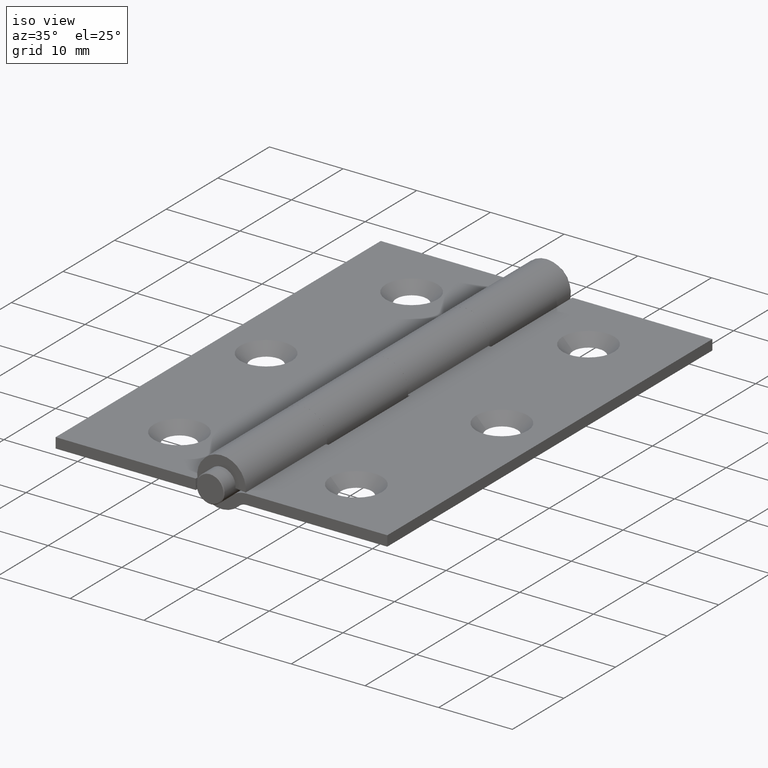
[diagram: clean part render]
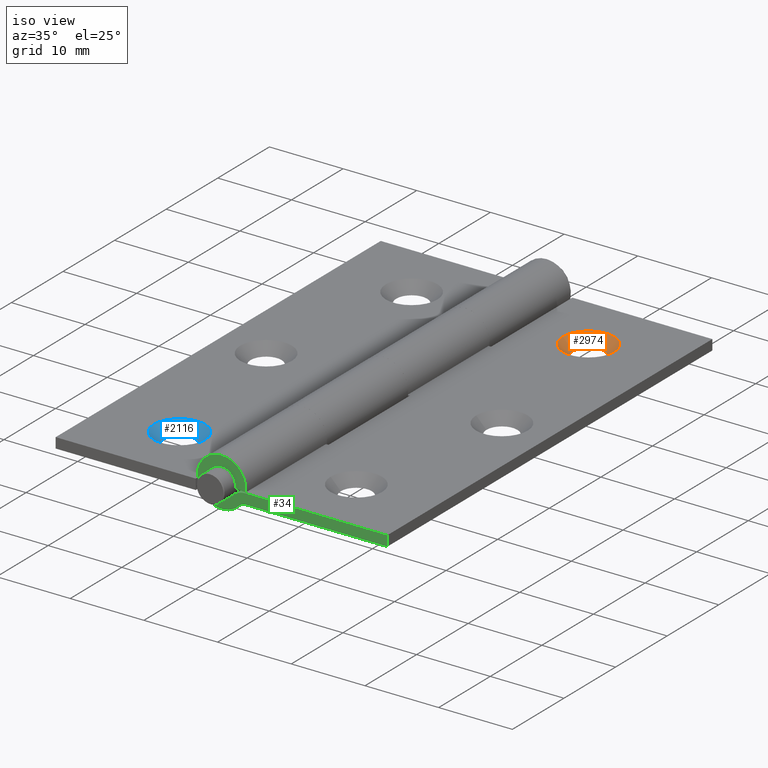
[diagram: same view with three faces highlighted in distinct colors, each labeled with its STEP entity id]
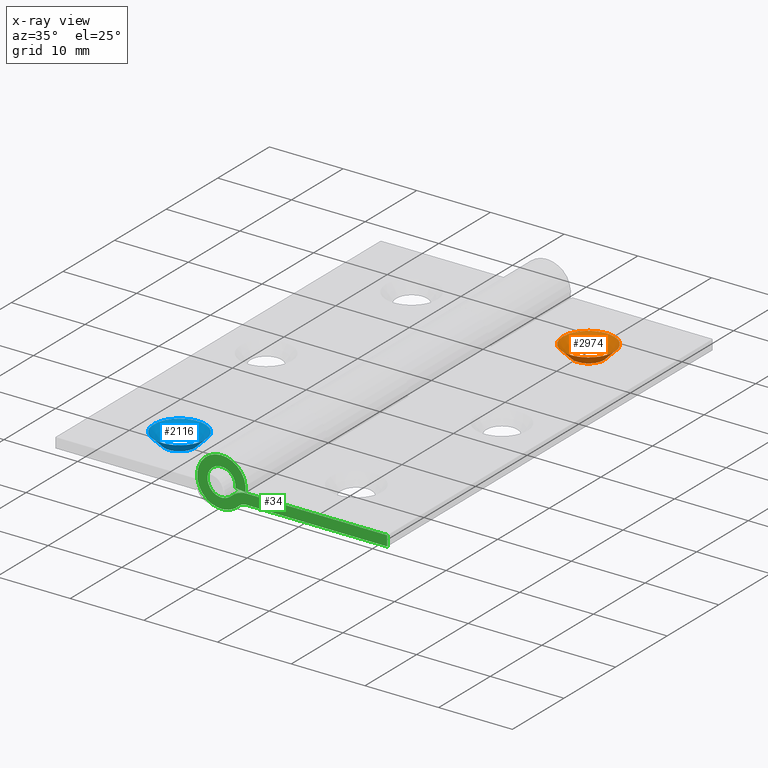
[diagram: x-ray of the same camera — body ghosted, the three highlighted faces saturated]
A machine part, iso view with three faces highlighted in distinct colors.
The next image is the same camera in x-ray (body ghosted, the three faces saturated) — at least one of them is partly hidden behind the body in this view.
Their STEP definitions:

[orange] entity #2974 — the highlighted conical surface has half-angle 45 deg.
#587 = CARTESIAN_POINT ( 'NONE',  ( -9.899999999999996803, -22.50000000000000000, -1.899999999999999689 ) ) ;
#661 = CARTESIAN_POINT ( 'NONE',  ( -15.49999999999998757, -22.50000000000000000, -0.5000000000000001110 ) ) ;
#1502 = FACE_BOUND ( 'NONE', #2259, .T. ) ;
#1519 = AXIS2_PLACEMENT_3D ( 'NONE', #3634, #5445, #8141 ) ;
#1692 = VERTEX_POINT ( 'NONE', #661 ) ;
#1995 = CARTESIAN_POINT ( 'NONE',  ( -11.99999999999999822, -22.50000000000000000, -1.899999999999999689 ) ) ;
#2259 = EDGE_LOOP ( 'NONE', ( #6243 ) ) ;
#2742 = DIRECTION ( 'NONE',  ( 0.000000000000000000, 0.000000000000000000, 1.000000000000000000 ) ) ;
#2859 = CONICAL_SURFACE ( 'NONE', #6105, 2.100000000000000977, 0.7853981633974482790 ) ;
#2974 = ADVANCED_FACE ( 'NONE', ( #3822, #1502 ), #2859, .F. ) ;
#3055 = EDGE_LOOP ( 'NONE', ( #10141 ) ) ;
#3634 = CARTESIAN_POINT ( 'NONE',  ( -11.99999999999999822, -22.50000000000000000, -0.5000000000000002220 ) ) ;
#3809 = DIRECTION ( 'NONE',  ( 1.000000000000000000, 0.000000000000000000, 0.000000000000000000 ) ) ;
#3822 = FACE_OUTER_BOUND ( 'NONE', #3055, .T. ) ;
#4362 = EDGE_CURVE ( 'NONE', #9398, #9398, #5747, .T. ) ;
#5001 = EDGE_CURVE ( 'NONE', #1692, #1692, #8202, .T. ) ;
#5445 = DIRECTION ( 'NONE',  ( -2.264254790790743879E-17, 0.000000000000000000, -1.000000000000000000 ) ) ;
#5747 = CIRCLE ( 'NONE', #7025, 2.100000000000000977 ) ;
#6105 = AXIS2_PLACEMENT_3D ( 'NONE', #6179, #2742, #3809 ) ;
#6179 = CARTESIAN_POINT ( 'NONE',  ( -11.99999999999999822, -22.50000000000000000, -1.899999999999988809 ) ) ;
#6243 = ORIENTED_EDGE ( 'NONE', *, *, #4362, .F. ) ;
#7025 = AXIS2_PLACEMENT_3D ( 'NONE', #1995, #8973, #8902 ) ;
#8141 = DIRECTION ( 'NONE',  ( -1.000000000000000000, 0.000000000000000000, 3.097720492815736287E-17 ) ) ;
#8202 = CIRCLE ( 'NONE', #1519, 3.499999999999989342 ) ;
#8902 = DIRECTION ( 'NONE',  ( 1.000000000000000000, 0.000000000000000000, 0.000000000000000000 ) ) ;
#8973 = DIRECTION ( 'NONE',  ( 0.000000000000000000, 0.000000000000000000, 1.000000000000000000 ) ) ;
#9398 = VERTEX_POINT ( 'NONE', #587 ) ;
#10141 = ORIENTED_EDGE ( 'NONE', *, *, #5001, .F. ) ;

[blue] entity #2116 — the highlighted conical surface has half-angle 45 deg.
#89 = CARTESIAN_POINT ( 'NONE',  ( -11.99999999999999822, -22.50000000000000000, -1.899999999999995470 ) ) ;
#127 = CONICAL_SURFACE ( 'NONE', #9906, 2.100000000000000977, 0.7853981633974506105 ) ;
#528 = FACE_OUTER_BOUND ( 'NONE', #11336, .T. ) ;
#851 = EDGE_LOOP ( 'NONE', ( #11015 ) ) ;
#1316 = DIRECTION ( 'NONE',  ( -1.000000000000000000, 0.000000000000000000, 0.000000000000000000 ) ) ;
#1847 = DIRECTION ( 'NONE',  ( 1.000000000000000000, 0.000000000000000000, 0.000000000000000000 ) ) ;
#2116 = ADVANCED_FACE ( 'NONE', ( #528, #8096 ), #127, .F. ) ;
#2428 = AXIS2_PLACEMENT_3D ( 'NONE', #3661, #2748, #9934 ) ;
#2710 = AXIS2_PLACEMENT_3D ( 'NONE', #8313, #3071, #1316 ) ;
#2748 = DIRECTION ( 'NONE',  ( 0.000000000000000000, 0.000000000000000000, 1.000000000000000000 ) ) ;
#3071 = DIRECTION ( 'NONE',  ( 0.000000000000000000, 0.000000000000000000, -1.000000000000000000 ) ) ;
#3613 = ORIENTED_EDGE ( 'NONE', *, *, #7674, .F. ) ;
#3661 = CARTESIAN_POINT ( 'NONE',  ( -11.99999999999999822, -22.50000000000000000, -1.899999999999999689 ) ) ;
#5257 = VERTEX_POINT ( 'NONE', #7677 ) ;
#5929 = CARTESIAN_POINT ( 'NONE',  ( -9.899999999999996803, -22.50000000000000000, -1.899999999999999689 ) ) ;
#6241 = DIRECTION ( 'NONE',  ( 0.000000000000000000, 0.000000000000000000, 1.000000000000000000 ) ) ;
#7205 = VERTEX_POINT ( 'NONE', #5929 ) ;
#7674 = EDGE_CURVE ( 'NONE', #5257, #5257, #10095, .T. ) ;
#7677 = CARTESIAN_POINT ( 'NONE',  ( -15.50000000000000178, -22.50000000000000000, -0.5000000000000000000 ) ) ;
#8096 = FACE_BOUND ( 'NONE', #851, .T. ) ;
#8313 = CARTESIAN_POINT ( 'NONE',  ( -11.99999999999999822, -22.50000000000000000, -0.5000000000000000000 ) ) ;
#9906 = AXIS2_PLACEMENT_3D ( 'NONE', #89, #6241, #1847 ) ;
#9934 = DIRECTION ( 'NONE',  ( 1.000000000000000000, 0.000000000000000000, 0.000000000000000000 ) ) ;
#9984 = EDGE_CURVE ( 'NONE', #7205, #7205, #11310, .T. ) ;
#10095 = CIRCLE ( 'NONE', #2710, 3.500000000000003109 ) ;
#11015 = ORIENTED_EDGE ( 'NONE', *, *, #9984, .F. ) ;
#11310 = CIRCLE ( 'NONE', #2428, 2.100000000000000977 ) ;
#11336 = EDGE_LOOP ( 'NONE', ( #3613 ) ) ;

[green] entity #34 — the highlighted planar face has unit normal (0, 1, 0).
#34 = ADVANCED_FACE ( 'NONE', ( #278 ), #8457, .F. ) ;
#65 = CARTESIAN_POINT ( 'NONE',  ( -1.352897064182760900, 31.50000000000000000, -1.334042553191490788 ) ) ;
#278 = FACE_OUTER_BOUND ( 'NONE', #2449, .T. ) ;
#454 = CIRCLE ( 'NONE', #11124, 2.799999999999999378 ) ;
#775 = LINE ( 'NONE', #3146, #9716 ) ;
#969 = CARTESIAN_POINT ( 'NONE',  ( -3.346640106136300030, 31.50000000000000000, -1.899999999999999689 ) ) ;
#986 = CARTESIAN_POINT ( 'NONE',  ( 0.000000000000000000, 31.50000000000000000, 0.000000000000000000 ) ) ;
#1222 = AXIS2_PLACEMENT_3D ( 'NONE', #1413, #4047, #3899 ) ;
#1237 = EDGE_CURVE ( 'NONE', #6549, #9191, #9078, .T. ) ;
#1321 = AXIS2_PLACEMENT_3D ( 'NONE', #986, #10794, #8970 ) ;
#1413 = CARTESIAN_POINT ( 'NONE',  ( -3.346640106136300030, 31.50000000000000000, -3.299999999999999822 ) ) ;
#2005 = VECTOR ( 'NONE', #9453, 1000.000000000000000 ) ;
#2449 = EDGE_LOOP ( 'NONE', ( #7270, #10249, #10263, #5790, #5446, #3438, #7032, #6287 ) ) ;
#2684 = EDGE_CURVE ( 'NONE', #10766, #6549, #9630, .T. ) ;
#2690 = VERTEX_POINT ( 'NONE', #11014 ) ;
#2779 = AXIS2_PLACEMENT_3D ( 'NONE', #3317, #10374, #3276 ) ;
#3106 = EDGE_CURVE ( 'NONE', #8621, #10766, #3273, .T. ) ;
#3146 = CARTESIAN_POINT ( 'NONE',  ( -22.50000000000000000, 31.50000000000000000, -0.5000000000000000000 ) ) ;
#3164 = CARTESIAN_POINT ( 'NONE',  ( -3.346640106136300030, 31.50000000000000000, -3.299999999999999822 ) ) ;
#3273 = CIRCLE ( 'NONE', #1321, 3.299999999999998046 ) ;
#3276 = DIRECTION ( 'NONE',  ( 0.000000000000000000, 0.000000000000000000, 1.000000000000000000 ) ) ;
#3317 = CARTESIAN_POINT ( 'NONE',  ( 0.000000000000000000, 31.50000000000000000, 0.000000000000000000 ) ) ;
#3438 = ORIENTED_EDGE ( 'NONE', *, *, #3106, .T. ) ;
#3655 = LINE ( 'NONE', #4055, #2005 ) ;
#3892 = VECTOR ( 'NONE', #9421, 1000.000000000000227 ) ;
#3899 = DIRECTION ( 'NONE',  ( 0.000000000000000000, 0.000000000000000000, -1.000000000000000000 ) ) ;
#4047 = DIRECTION ( 'NONE',  ( -0.000000000000000000, -1.000000000000000000, 0.000000000000000000 ) ) ;
#4055 = CARTESIAN_POINT ( 'NONE',  ( -22.50000000000000000, 31.50000000000000000, -0.5000000000000000000 ) ) ;
#4061 = CARTESIAN_POINT ( 'NONE',  ( -22.50000000000000000, 31.50000000000000000, -1.899999999999999689 ) ) ;
#5152 = CARTESIAN_POINT ( 'NONE',  ( -3.346640106136300030, 31.50000000000000000, -3.299999999999999822 ) ) ;
#5169 = EDGE_CURVE ( 'NONE', #2690, #8021, #3655, .T. ) ;
#5285 = EDGE_CURVE ( 'NONE', #9191, #2690, #775, .T. ) ;
#5432 = CIRCLE ( 'NONE', #2779, 1.900000000000001465 ) ;
#5446 = ORIENTED_EDGE ( 'NONE', *, *, #11131, .T. ) ;
#5709 = CARTESIAN_POINT ( 'NONE',  ( -3.275667870831838524, 31.50000000000000000, -0.3999999999999999112 ) ) ;
#5775 = EDGE_CURVE ( 'NONE', #9945, #11114, #5432, .T. ) ;
#5790 = ORIENTED_EDGE ( 'NONE', *, *, #5775, .T. ) ;
#6238 = LINE ( 'NONE', #11260, #3892 ) ;
#6287 = ORIENTED_EDGE ( 'NONE', *, *, #1237, .T. ) ;
#6549 = VERTEX_POINT ( 'NONE', #969 ) ;
#7032 = ORIENTED_EDGE ( 'NONE', *, *, #2684, .T. ) ;
#7270 = ORIENTED_EDGE ( 'NONE', *, *, #5285, .T. ) ;
#7669 = CARTESIAN_POINT ( 'NONE',  ( -22.50000000000000000, 31.50000000000000000, -1.899999999999999689 ) ) ;
#7926 = CARTESIAN_POINT ( 'NONE',  ( -3.346640106136299586, 31.50000000000000000, -0.5000000000000008882 ) ) ;
#8021 = VERTEX_POINT ( 'NONE', #7926 ) ;
#8375 = DIRECTION ( 'NONE',  ( 0.000000000000000000, -1.000000000000000000, 0.000000000000000000 ) ) ;
#8457 = PLANE ( 'NONE',  #10105 ) ;
#8539 = DIRECTION ( 'NONE',  ( -0.000000000000000000, -0.000000000000000000, 1.000000000000000000 ) ) ;
#8621 = VERTEX_POINT ( 'NONE', #5709 ) ;
#8676 = DIRECTION ( 'NONE',  ( 0.000000000000000000, 0.000000000000000000, -1.000000000000000000 ) ) ;
#8736 = EDGE_CURVE ( 'NONE', #8021, #9945, #454, .T. ) ;
#8970 = DIRECTION ( 'NONE',  ( 0.000000000000000000, 0.000000000000000000, 1.000000000000000000 ) ) ;
#9078 = LINE ( 'NONE', #4061, #9490 ) ;
#9191 = VERTEX_POINT ( 'NONE', #7669 ) ;
#9256 = DIRECTION ( 'NONE',  ( 0.000000000000000000, -0.000000000000000000, -1.000000000000000000 ) ) ;
#9346 = CARTESIAN_POINT ( 'NONE',  ( -1.885990592297123181, 31.50000000000000000, -0.2303030303030307591 ) ) ;
#9421 = DIRECTION ( 'NONE',  ( -0.9926266275247999094, -0.000000000000000000, -0.1212121212121212016 ) ) ;
#9453 = DIRECTION ( 'NONE',  ( 1.000000000000000000, 0.000000000000000000, -2.264254790790743879E-17 ) ) ;
#9473 = CARTESIAN_POINT ( 'NONE',  ( -2.349768585159529355, 31.50000000000000000, -2.317021276595743640 ) ) ;
#9490 = VECTOR ( 'NONE', #10205, 1000.000000000000000 ) ;
#9630 = CIRCLE ( 'NONE', #1222, 1.400000000000001021 ) ;
#9716 = VECTOR ( 'NONE', #8539, 1000.000000000000000 ) ;
#9945 = VERTEX_POINT ( 'NONE', #65 ) ;
#10105 = AXIS2_PLACEMENT_3D ( 'NONE', #3164, #8375, #9256 ) ;
#10205 = DIRECTION ( 'NONE',  ( -1.000000000000000000, -0.000000000000000000, -0.000000000000000000 ) ) ;
#10249 = ORIENTED_EDGE ( 'NONE', *, *, #5169, .T. ) ;
#10263 = ORIENTED_EDGE ( 'NONE', *, *, #8736, .T. ) ;
#10374 = DIRECTION ( 'NONE',  ( -0.000000000000000000, -1.000000000000000000, -0.000000000000000000 ) ) ;
#10766 = VERTEX_POINT ( 'NONE', #9473 ) ;
#10794 = DIRECTION ( 'NONE',  ( 0.000000000000000000, 1.000000000000000000, 0.000000000000000000 ) ) ;
#11014 = CARTESIAN_POINT ( 'NONE',  ( -22.50000000000000000, 31.50000000000000000, -0.5000000000000000000 ) ) ;
#11114 = VERTEX_POINT ( 'NONE', #9346 ) ;
#11124 = AXIS2_PLACEMENT_3D ( 'NONE', #5152, #11238, #8676 ) ;
#11131 = EDGE_CURVE ( 'NONE', #11114, #8621, #6238, .T. ) ;
#11238 = DIRECTION ( 'NONE',  ( 0.000000000000000000, 1.000000000000000000, -0.000000000000000000 ) ) ;
#11260 = CARTESIAN_POINT ( 'NONE',  ( -3.275667870831839856, 31.50000000000000000, -0.4000000000000000222 ) ) ;